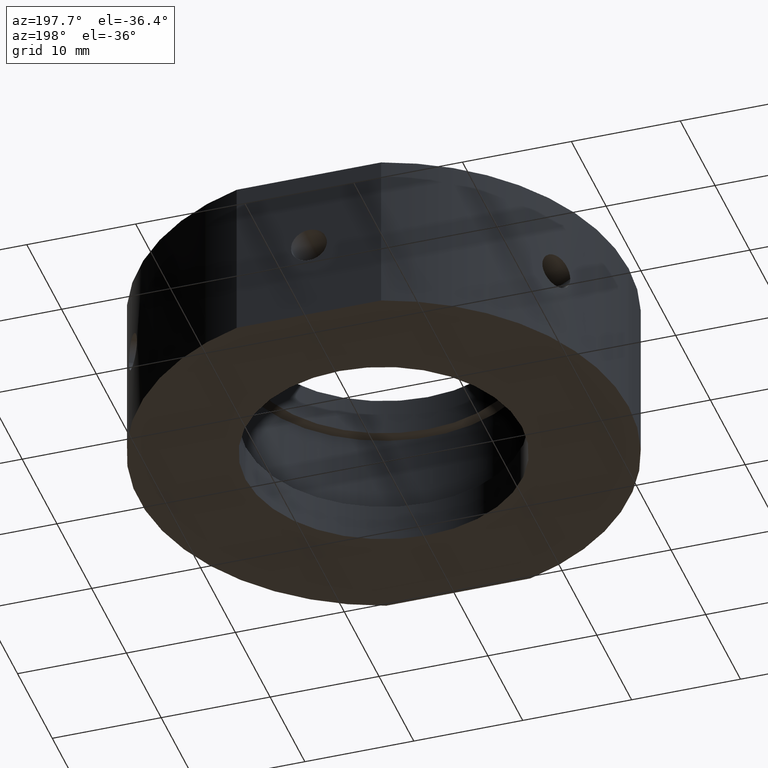
[diagram: clean part render]
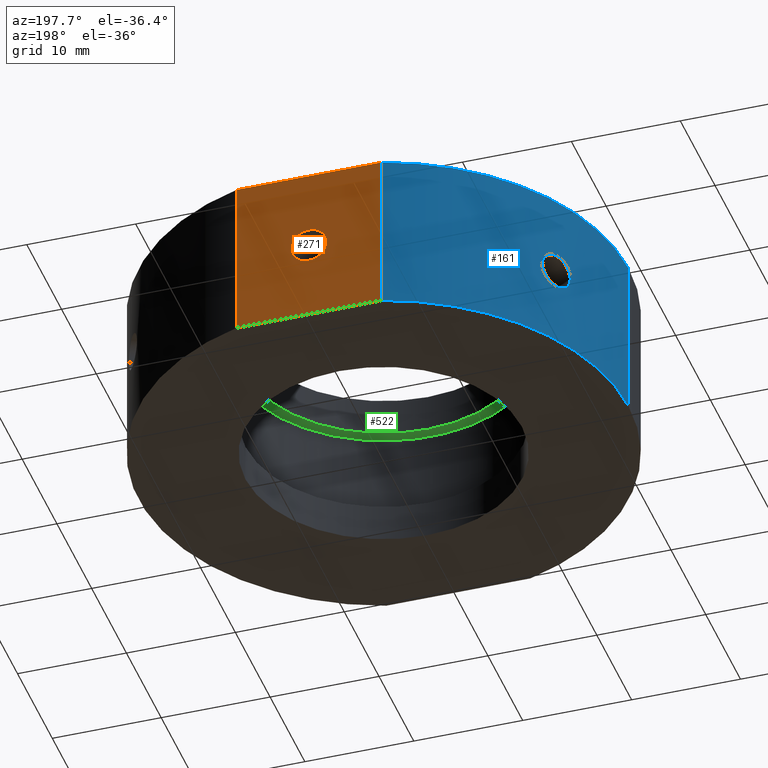
[diagram: same view with three faces highlighted in distinct colors, each labeled with its STEP entity id]
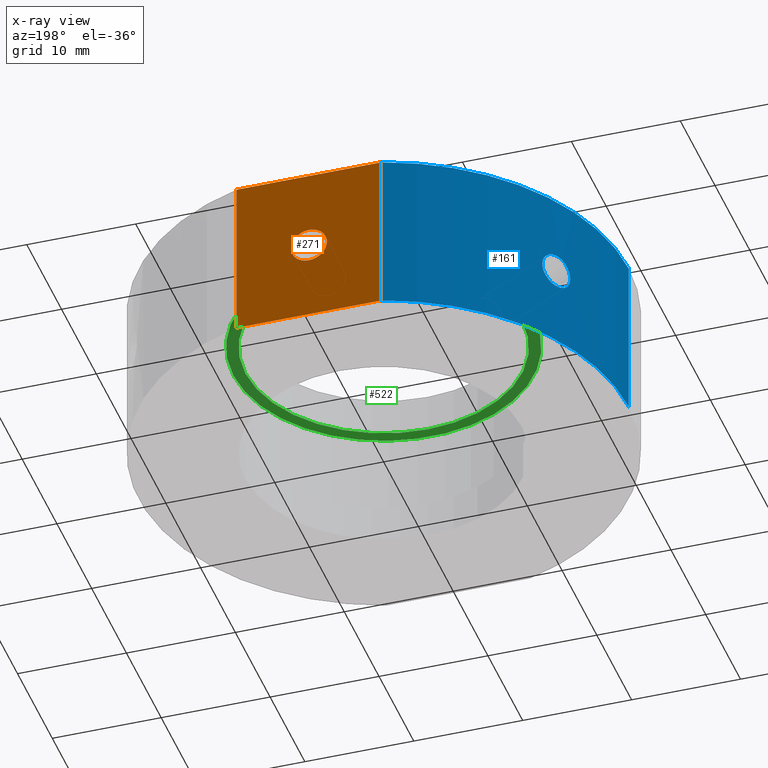
[diagram: x-ray of the same camera — body ghosted, the three highlighted faces saturated]
A machine part, auxiliary view with three faces highlighted in distinct colors.
The next image is the same camera in x-ray (body ghosted, the three faces saturated) — at least one of them is partly hidden behind the body in this view.
Their STEP definitions:

[orange] entity #271 — the highlighted planar face has unit normal (0, -1, 0).
#10 = CARTESIAN_POINT ( 'NONE',  ( 6.071532165918824800E-015, 21.50000000000000000, 0.0000000000000000000 ) ) ;
#14 = EDGE_CURVE ( 'NONE', #108, #37, #1005, .T. ) ;
#37 = VERTEX_POINT ( 'NONE', #937 ) ;
#43 = VERTEX_POINT ( 'NONE', #748 ) ;
#71 = AXIS2_PLACEMENT_3D ( 'NONE', #941, #752, #401 ) ;
#85 = EDGE_CURVE ( 'NONE', #43, #275, #1040, .T. ) ;
#108 = VERTEX_POINT ( 'NONE', #494 ) ;
#122 = PLANE ( 'NONE',  #908 ) ;
#126 = CARTESIAN_POINT ( 'NONE',  ( 6.273598887778137200E-015, 21.50000000000000000, -1.649999999999989900 ) ) ;
#140 = VECTOR ( 'NONE', #651, 1000.000000000000000 ) ;
#149 = DIRECTION ( 'NONE',  ( 0.0000000000000000000, -0.0000000000000000000, -1.000000000000000000 ) ) ;
#165 = CARTESIAN_POINT ( 'NONE',  ( 6.633249580710828900, 21.49999999999999300, -7.500000000000000000 ) ) ;
#173 = EDGE_LOOP ( 'NONE', ( #633, #805, #459, #1045 ) ) ;
#182 = EDGE_CURVE ( 'NONE', #37, #563, #1062, .T. ) ;
#195 = VECTOR ( 'NONE', #868, 1000.000000000000000 ) ;
#221 = CARTESIAN_POINT ( 'NONE',  ( -6.633249580710826300, 21.49999999999999300, -31.93906810035839800 ) ) ;
#260 = DIRECTION ( 'NONE',  ( 0.0000000000000000000, 0.0000000000000000000, 1.000000000000000000 ) ) ;
#271 = ADVANCED_FACE ( 'NONE', ( #784, #332 ), #122, .F. ) ;
#275 = VERTEX_POINT ( 'NONE', #126 ) ;
#307 = ORIENTED_EDGE ( 'NONE', *, *, #764, .F. ) ;
#313 = EDGE_LOOP ( 'NONE', ( #461, #307 ) ) ;
#332 = FACE_OUTER_BOUND ( 'NONE', #173, .T. ) ;
#344 = DIRECTION ( 'NONE',  ( -0.0000000000000000000, 1.000000000000000000, -0.0000000000000000000 ) ) ;
#350 = CARTESIAN_POINT ( 'NONE',  ( 12.70000000000000300, 21.50000000000000000, -7.500000000000002700 ) ) ;
#400 = CARTESIAN_POINT ( 'NONE',  ( -6.633249580710799600, 21.50000000000000000, -7.500000000000002700 ) ) ;
#401 = DIRECTION ( 'NONE',  ( 0.0000000000000000000, 0.0000000000000000000, 1.000000000000000000 ) ) ;
#440 = VERTEX_POINT ( 'NONE', #165 ) ;
#459 = ORIENTED_EDGE ( 'NONE', *, *, #503, .F. ) ;
#461 = ORIENTED_EDGE ( 'NONE', *, *, #85, .F. ) ;
#494 = CARTESIAN_POINT ( 'NONE',  ( 6.633249580710813800, 21.50000000000000000, 7.499999999999999100 ) ) ;
#503 = EDGE_CURVE ( 'NONE', #563, #440, #910, .T. ) ;
#515 = VECTOR ( 'NONE', #814, 1000.000000000000000 ) ;
#563 = VERTEX_POINT ( 'NONE', #400 ) ;
#606 = CARTESIAN_POINT ( 'NONE',  ( 6.633249580710826300, 21.49999999999999300, -31.93906810035839800 ) ) ;
#633 = ORIENTED_EDGE ( 'NONE', *, *, #14, .F. ) ;
#638 = LINE ( 'NONE', #606, #195 ) ;
#639 = EDGE_CURVE ( 'NONE', #440, #108, #638, .T. ) ;
#651 = DIRECTION ( 'NONE',  ( -1.224646799147350500E-016, -0.0000000000000000000, -1.000000000000000000 ) ) ;
#719 = CARTESIAN_POINT ( 'NONE',  ( 22.50000000000000700, 21.50000000000000000, 7.499999999999996400 ) ) ;
#748 = CARTESIAN_POINT ( 'NONE',  ( 6.071532165918824800E-015, 21.50000000000000000, 1.649999999999989900 ) ) ;
#752 = DIRECTION ( 'NONE',  ( -0.0000000000000000000, 1.000000000000000000, -0.0000000000000000000 ) ) ;
#764 = EDGE_CURVE ( 'NONE', #275, #43, #838, .T. ) ;
#771 = CARTESIAN_POINT ( 'NONE',  ( -33.15197265346817100, 21.50000000000000000, -41.50000000000002100 ) ) ;
#784 = FACE_BOUND ( 'NONE', #313, .T. ) ;
#805 = ORIENTED_EDGE ( 'NONE', *, *, #639, .F. ) ;
#814 = DIRECTION ( 'NONE',  ( -1.000000000000000000, 0.0000000000000000000, 1.224646799147350500E-016 ) ) ;
#838 = CIRCLE ( 'NONE', #863, 1.649999999999989900 ) ;
#863 = AXIS2_PLACEMENT_3D ( 'NONE', #10, #344, #260 ) ;
#868 = DIRECTION ( 'NONE',  ( 1.224646799147350500E-016, 0.0000000000000000000, 1.000000000000000000 ) ) ;
#908 = AXIS2_PLACEMENT_3D ( 'NONE', #771, #1034, #149 ) ;
#910 = LINE ( 'NONE', #350, #1101 ) ;
#937 = CARTESIAN_POINT ( 'NONE',  ( -6.633249580710805800, 21.50000000000000000, 7.499999999999993800 ) ) ;
#941 = CARTESIAN_POINT ( 'NONE',  ( 6.071532165918824800E-015, 21.50000000000000000, 0.0000000000000000000 ) ) ;
#1005 = LINE ( 'NONE', #719, #515 ) ;
#1034 = DIRECTION ( 'NONE',  ( 0.0000000000000000000, -1.000000000000000000, 0.0000000000000000000 ) ) ;
#1040 = CIRCLE ( 'NONE', #71, 1.649999999999989900 ) ;
#1045 = ORIENTED_EDGE ( 'NONE', *, *, #182, .F. ) ;
#1062 = LINE ( 'NONE', #221, #140 ) ;
#1074 = DIRECTION ( 'NONE',  ( 1.000000000000000000, 0.0000000000000000000, -1.224646799147350500E-016 ) ) ;
#1101 = VECTOR ( 'NONE', #1074, 1000.000000000000000 ) ;

[blue] entity #161 — the highlighted cylindrical surface (partial cylindrical patch) has radius 22.5 mm, axis along (-0, -0, -1).
#5 = CARTESIAN_POINT ( 'NONE',  ( -20.22117803179613900, 9.866898344264484400, -0.5320533464823926600 ) ) ;
#15 = CARTESIAN_POINT ( 'NONE',  ( -19.26822083744344000, 11.61881524249319000, -1.597151308643779200 ) ) ;
#16 = CARTESIAN_POINT ( 'NONE',  ( -19.05883007539623000, 11.95905715500232900, 1.431603215071189000 ) ) ;
#21 = VERTEX_POINT ( 'NONE', #299 ) ;
#23 = CIRCLE ( 'NONE', #702, 22.50000000000000000 ) ;
#29 = CARTESIAN_POINT ( 'NONE',  ( -19.10906443453928100, 11.87870452879390400, 1.482324220416189900 ) ) ;
#37 = VERTEX_POINT ( 'NONE', #937 ) ;
#39 = VECTOR ( 'NONE', #298, 1000.000000000000000 ) ;
#42 = CARTESIAN_POINT ( 'NONE',  ( 4.829892851045827200E-015, 0.0000000000000000000, 7.499999999999992900 ) ) ;
#66 = DIRECTION ( 'NONE',  ( -1.000000000000000000, 0.0000000000000000000, 0.0000000000000000000 ) ) ;
#79 = CARTESIAN_POINT ( 'NONE',  ( -20.10861962241923000, 10.09440518437754100, -1.005981911973163400 ) ) ;
#88 = FACE_OUTER_BOUND ( 'NONE', #525, .T. ) ;
#94 = CARTESIAN_POINT ( 'NONE',  ( -20.25344142869103300, 9.800436335307317400, -0.2162874750742588300 ) ) ;
#113 = B_SPLINE_CURVE_WITH_KNOTS ( 'NONE', 3,
 ( #196, #741, #823, #470, #285, #1079, #902, #16, #29, #644, #919, #723, #365, #376, #114, #645, #200, #827, #290, #554, #295, #1008, #1084, #925 ),
 .UNSPECIFIED., .F., .F.,
 ( 4, 2, 2, 2, 2, 2, 2, 2, 2, 2, 2, 4 ),
 ( 0.005160383223614561100, 0.005805282465315268200, 0.006450181707015975400, 0.006772631327866325500, 0.007095080948716674800, 0.007417530569567024900, 0.007739980190417375000, 0.008384879432118070100, 0.008707329052968412400, 0.009029778673818756500, 0.009674677915519444600, 0.01031957715722013400 ),
 .UNSPECIFIED. ) ;
#114 = CARTESIAN_POINT ( 'NONE',  ( -19.69811034423322800, 10.87540731472498700, 1.607441041680906400 ) ) ;
#116 = CYLINDRICAL_SURFACE ( 'NONE', #958, 22.50000000000000000 ) ;
#131 = CARTESIAN_POINT ( 'NONE',  ( -18.63793209717591300, 12.60467907797121600, -0.4286018244349813500 ) ) ;
#140 = VECTOR ( 'NONE', #651, 1000.000000000000000 ) ;
#161 = ADVANCED_FACE ( 'NONE', ( #88, #278 ), #116, .T. ) ;
#172 = CARTESIAN_POINT ( 'NONE',  ( -20.25810641662824800, 9.790767304586768900, -0.1090587332655386800 ) ) ;
#182 = EDGE_CURVE ( 'NONE', #37, #563, #1062, .T. ) ;
#196 = CARTESIAN_POINT ( 'NONE',  ( -18.60810641662824600, 12.64865113707539200, 2.020667263024862200E-016 ) ) ;
#200 = CARTESIAN_POINT ( 'NONE',  ( -19.88534993490053900, 10.52762599605220500, 1.432719790953437000 ) ) ;
#202 = DIRECTION ( 'NONE',  ( -1.000000000000000000, 0.0000000000000000000, 1.156482317317871200E-016 ) ) ;
#211 = CARTESIAN_POINT ( 'NONE',  ( -19.21486011188203600, 11.70679890416977500, -1.565974926310358000 ) ) ;
#221 = CARTESIAN_POINT ( 'NONE',  ( -6.633249580710826300, 21.49999999999999300, -31.93906810035839800 ) ) ;
#250 = VERTEX_POINT ( 'NONE', #842 ) ;
#261 = CARTESIAN_POINT ( 'NONE',  ( -19.88818014593819700, 10.52377058317680000, -1.442013257166697500 ) ) ;
#278 = FACE_BOUND ( 'NONE', #293, .T. ) ;
#285 = CARTESIAN_POINT ( 'NONE',  ( -18.79271128675919300, 12.37364815511228300, 1.013701896851197500 ) ) ;
#290 = CARTESIAN_POINT ( 'NONE',  ( -20.00768950323507400, 10.29311306632212500, 1.243597569724805400 ) ) ;
#293 = EDGE_LOOP ( 'NONE', ( #947, #780 ) ) ;
#295 = CARTESIAN_POINT ( 'NONE',  ( -20.16630116360724000, 9.978834015259586500, 0.8315909376945351800 ) ) ;
#297 = CARTESIAN_POINT ( 'NONE',  ( -18.83413387902964700, 12.30980716680219300, -1.089943829978072800 ) ) ;
#298 = DIRECTION ( 'NONE',  ( -1.224646799147350500E-016, -0.0000000000000000000, -1.000000000000000000 ) ) ;
#299 = CARTESIAN_POINT ( 'NONE',  ( -22.50000000000000000, 0.0000000000000000000, 7.499999999999995600 ) ) ;
#306 = CARTESIAN_POINT ( 'NONE',  ( -22.50000000000000000, 0.0000000000000000000, -31.93906810035839800 ) ) ;
#357 = CARTESIAN_POINT ( 'NONE',  ( -19.59352181747923200, 11.06301336427406300, -1.649922622886365500 ) ) ;
#365 = CARTESIAN_POINT ( 'NONE',  ( -19.43045358545735400, 11.34545427137673100, 1.649912014729165900 ) ) ;
#376 = CARTESIAN_POINT ( 'NONE',  ( -19.59381990642730300, 11.06253398261654100, 1.650174374395401200 ) ) ;
#380 = AXIS2_PLACEMENT_3D ( 'NONE', #42, #738, #202 ) ;
#400 = CARTESIAN_POINT ( 'NONE',  ( -6.633249580710799600, 21.50000000000000000, -7.500000000000002700 ) ) ;
#451 = CARTESIAN_POINT ( 'NONE',  ( -19.43204055837166800, 11.34272410910774400, -1.650038529183564000 ) ) ;
#470 = CARTESIAN_POINT ( 'NONE',  ( -18.72443553671950100, 12.47606910408178400, 0.8296025954351865500 ) ) ;
#496 = CARTESIAN_POINT ( 'NONE',  ( -18.60810641662824900, 12.64865113707539400, -0.1077054714931356700 ) ) ;
#510 = EDGE_CURVE ( 'NONE', #250, #1019, #732, .T. ) ;
#513 = CARTESIAN_POINT ( 'NONE',  ( -18.96317305376358300, 12.11016392753319900, -1.312163548273845800 ) ) ;
#525 = EDGE_LOOP ( 'NONE', ( #922, #692, #985, #769 ) ) ;
#531 = CARTESIAN_POINT ( 'NONE',  ( -19.37667444682860200, 11.43703148816601000, -1.639300148209339900 ) ) ;
#554 = CARTESIAN_POINT ( 'NONE',  ( -20.11166152774220000, 10.08931781684726500, 1.015440336546107300 ) ) ;
#563 = VERTEX_POINT ( 'NONE', #400 ) ;
#577 = EDGE_CURVE ( 'NONE', #1085, #563, #23, .T. ) ;
#582 = CARTESIAN_POINT ( 'NONE',  ( -18.60810641662824600, 12.64865113707539200, 2.020667263024862200E-016 ) ) ;
#592 = DIRECTION ( 'NONE',  ( -1.224646799147350500E-016, -0.0000000000000000000, -1.000000000000000000 ) ) ;
#644 = CARTESIAN_POINT ( 'NONE',  ( -19.21371282972923600, 11.70868071741904100, 1.565221042383190500 ) ) ;
#645 = CARTESIAN_POINT ( 'NONE',  ( -19.84083197290809500, 10.61138046964286700, 1.483341811114536200 ) ) ;
#651 = DIRECTION ( 'NONE',  ( -1.224646799147350500E-016, -0.0000000000000000000, -1.000000000000000000 ) ) ;
#664 = CARTESIAN_POINT ( 'NONE',  ( -18.65546112740139200, 12.57877149691223700, -0.5314702050519215500 ) ) ;
#678 = CARTESIAN_POINT ( 'NONE',  ( -18.70173569627144900, 12.50986827246084800, -0.7313887006983229600 ) ) ;
#692 = ORIENTED_EDGE ( 'NONE', *, *, #1039, .T. ) ;
#702 = AXIS2_PLACEMENT_3D ( 'NONE', #948, #1024, #1029 ) ;
#714 = CARTESIAN_POINT ( 'NONE',  ( -20.16216375849958500, 9.987029173932423700, -0.8266368506187202800 ) ) ;
#723 = CARTESIAN_POINT ( 'NONE',  ( -19.37619183932969200, 11.43784563228304300, 1.639150382823925100 ) ) ;
#732 = B_SPLINE_CURVE_WITH_KNOTS ( 'NONE', 3,
 ( #1060, #172, #94, #887, #5, #800, #714, #79, #1048, #1132, #261, #882, #357, #451, #531, #15, #211, #921, #1065, #513, #1049, #297, #959, #967, #678, #664, #131, #844, #496, #582 ),
 .UNSPECIFIED., .F., .F.,
 ( 4, 2, 2, 2, 2, 2, 2, 2, 2, 2, 2, 2, 2, 2, 4 ),
 ( 0.0000000000000000000, 0.0003225239514759115800, 0.0006450479029518231700, 0.0009675718544277343700, 0.001290095805903645700, 0.001935143708855465300, 0.002580191611807285300, 0.002902715563283194500, 0.003225239514759103400, 0.003547763466235013100, 0.003870287417710921900, 0.004192811369186831600, 0.004515335320662741700, 0.004837859272138650900, 0.005160383223614561100 ),
 .UNSPECIFIED. ) ;
#738 = DIRECTION ( 'NONE',  ( -1.224646799147350500E-016, -0.0000000000000000000, -1.000000000000000000 ) ) ;
#741 = CARTESIAN_POINT ( 'NONE',  ( -18.60810641662824600, 12.64865113707539600, 0.2153612982077316700 ) ) ;
#769 = ORIENTED_EDGE ( 'NONE', *, *, #577, .F. ) ;
#780 = ORIENTED_EDGE ( 'NONE', *, *, #880, .T. ) ;
#800 = CARTESIAN_POINT ( 'NONE',  ( -20.18462480212213400, 9.941460935254919900, -0.7318718721764815300 ) ) ;
#823 = CARTESIAN_POINT ( 'NONE',  ( -18.63257669664227500, 12.61284551964113700, 0.4324585402576647800 ) ) ;
#827 = CARTESIAN_POINT ( 'NONE',  ( -19.96868275772032000, 10.36869133824158400, 1.313203471232424800 ) ) ;
#842 = CARTESIAN_POINT ( 'NONE',  ( -20.25810641662824800, 9.790767304586770700, 0.0000000000000000000 ) ) ;
#844 = CARTESIAN_POINT ( 'NONE',  ( -18.61419720343361200, 12.63970371445745900, -0.2171000533953875400 ) ) ;
#880 = EDGE_CURVE ( 'NONE', #1019, #250, #113, .T. ) ;
#882 = CARTESIAN_POINT ( 'NONE',  ( -19.69928013699294700, 10.87326164905923600, -1.606581491676220900 ) ) ;
#887 = CARTESIAN_POINT ( 'NONE',  ( -20.23508979026608800, 9.838271354648599100, -0.4272369033474193200 ) ) ;
#902 = CARTESIAN_POINT ( 'NONE',  ( -18.96283749481673600, 12.11069139333559400, 1.311713029802911200 ) ) ;
#919 = CARTESIAN_POINT ( 'NONE',  ( -19.26811661407768700, 11.61898468235269300, 1.597072805409012600 ) ) ;
#921 = CARTESIAN_POINT ( 'NONE',  ( -19.11009701581169300, 11.87704431869018300, -1.483293915646771500 ) ) ;
#922 = ORIENTED_EDGE ( 'NONE', *, *, #1015, .F. ) ;
#925 = CARTESIAN_POINT ( 'NONE',  ( -20.25810641662824800, 9.790767304586770700, 0.0000000000000000000 ) ) ;
#935 = CARTESIAN_POINT ( 'NONE',  ( -18.60810641662824600, 12.64865113707539200, 2.020667263024862200E-016 ) ) ;
#937 = CARTESIAN_POINT ( 'NONE',  ( -6.633249580710805800, 21.50000000000000000, 7.499999999999993800 ) ) ;
#940 = LINE ( 'NONE', #306, #39 ) ;
#947 = ORIENTED_EDGE ( 'NONE', *, *, #510, .T. ) ;
#948 = CARTESIAN_POINT ( 'NONE',  ( 2.992922652324802300E-015, 0.0000000000000000000, -7.500000000000003600 ) ) ;
#958 = AXIS2_PLACEMENT_3D ( 'NONE', #1114, #592, #66 ) ;
#959 = CARTESIAN_POINT ( 'NONE',  ( -18.79657013430146500, 12.36699372930535100, -1.006534927037092700 ) ) ;
#963 = CIRCLE ( 'NONE', #380, 22.50000000000000400 ) ;
#967 = CARTESIAN_POINT ( 'NONE',  ( -18.73050579597769500, 12.46682539146345400, -0.8278483551175386300 ) ) ;
#985 = ORIENTED_EDGE ( 'NONE', *, *, #182, .T. ) ;
#1008 = CARTESIAN_POINT ( 'NONE',  ( -20.23906661269736400, 9.830412685752680300, 0.4347098583132135200 ) ) ;
#1015 = EDGE_CURVE ( 'NONE', #21, #1085, #940, .T. ) ;
#1019 = VERTEX_POINT ( 'NONE', #935 ) ;
#1024 = DIRECTION ( 'NONE',  ( -1.224646799147350500E-016, -0.0000000000000000000, -1.000000000000000000 ) ) ;
#1029 = DIRECTION ( 'NONE',  ( -1.000000000000000000, 0.0000000000000000000, 1.156482317317871500E-016 ) ) ;
#1039 = EDGE_CURVE ( 'NONE', #21, #37, #963, .T. ) ;
#1048 = CARTESIAN_POINT ( 'NONE',  ( -20.07725214420228400, 10.15675903091387000, -1.090865916825005900 ) ) ;
#1049 = CARTESIAN_POINT ( 'NONE',  ( -18.91810326811242100, 12.18036617651954300, -1.243967150874419900 ) ) ;
#1060 = CARTESIAN_POINT ( 'NONE',  ( -20.25810641662824800, 9.790767304586770700, 0.0000000000000000000 ) ) ;
#1062 = LINE ( 'NONE', #221, #140 ) ;
#1065 = CARTESIAN_POINT ( 'NONE',  ( -19.05886919334700400, 11.95899275397387600, -1.431620527020546900 ) ) ;
#1079 = CARTESIAN_POINT ( 'NONE',  ( -18.91697055752793200, 12.18211871839710600, 1.242018767666874800 ) ) ;
#1080 = CARTESIAN_POINT ( 'NONE',  ( -22.49999999999999600, 0.0000000000000000000, -7.500000000000000900 ) ) ;
#1084 = CARTESIAN_POINT ( 'NONE',  ( -20.25810641662824100, 9.790767304586767100, 0.2180671979923876900 ) ) ;
#1085 = VERTEX_POINT ( 'NONE', #1080 ) ;
#1114 = CARTESIAN_POINT ( 'NONE',  ( 0.0000000000000000000, 0.0000000000000000000, -31.93906810035839800 ) ) ;
#1132 = CARTESIAN_POINT ( 'NONE',  ( -19.97335872455489500, 10.36041369617781900, -1.319097808869327000 ) ) ;

[green] entity #522 — the highlighted planar face has unit normal (0, 0, 1).
#32 = ORIENTED_EDGE ( 'NONE', *, *, #786, .F. ) ;
#33 = AXIS2_PLACEMENT_3D ( 'NONE', #613, #713, #810 ) ;
#99 = CIRCLE ( 'NONE', #1016, 13.79999999999999900 ) ;
#125 = CARTESIAN_POINT ( 'NONE',  ( -12.69999999999998900, 0.0000000000000000000, 3.999999999999998200 ) ) ;
#143 = DIRECTION ( 'NONE',  ( 1.224646799147350500E-016, 0.0000000000000000000, 1.000000000000000000 ) ) ;
#205 = CARTESIAN_POINT ( 'NONE',  ( 13.80000000000000600, 1.690012582823347700E-015, 3.999999999999994700 ) ) ;
#208 = EDGE_LOOP ( 'NONE', ( #737, #969 ) ) ;
#243 = PLANE ( 'NONE',  #614 ) ;
#264 = DIRECTION ( 'NONE',  ( -1.224646799147350500E-016, -0.0000000000000000000, -1.000000000000000000 ) ) ;
#265 = AXIS2_PLACEMENT_3D ( 'NONE', #716, #264, #356 ) ;
#303 = EDGE_CURVE ( 'NONE', #339, #329, #99, .T. ) ;
#304 = EDGE_LOOP ( 'NONE', ( #32, #679 ) ) ;
#320 = CARTESIAN_POINT ( 'NONE',  ( 4.401266471344255700E-015, 0.0000000000000000000, 3.999999999999996400 ) ) ;
#329 = VERTEX_POINT ( 'NONE', #648 ) ;
#339 = VERTEX_POINT ( 'NONE', #205 ) ;
#356 = DIRECTION ( 'NONE',  ( -1.000000000000000000, 0.0000000000000000000, 1.257045997084642900E-016 ) ) ;
#447 = CIRCLE ( 'NONE', #33, 12.69999999999999400 ) ;
#477 = CIRCLE ( 'NONE', #265, 13.79999999999999900 ) ;
#486 = DIRECTION ( 'NONE',  ( -1.224646799147350500E-016, -0.0000000000000000000, -1.000000000000000000 ) ) ;
#500 = DIRECTION ( 'NONE',  ( -1.000000000000000000, 0.0000000000000000000, 1.257045997084642900E-016 ) ) ;
#522 = ADVANCED_FACE ( 'NONE', ( #1089, #568 ), #243, .F. ) ;
#524 = DIRECTION ( 'NONE',  ( -1.000000000000000000, 0.0000000000000000000, 1.365923996832132100E-016 ) ) ;
#568 = FACE_OUTER_BOUND ( 'NONE', #208, .T. ) ;
#613 = CARTESIAN_POINT ( 'NONE',  ( 4.401266471344255700E-015, 0.0000000000000000000, 3.999999999999996400 ) ) ;
#614 = AXIS2_PLACEMENT_3D ( 'NONE', #1032, #143, #774 ) ;
#637 = CARTESIAN_POINT ( 'NONE',  ( 4.401266471344255700E-015, 0.0000000000000000000, 3.999999999999996400 ) ) ;
#648 = CARTESIAN_POINT ( 'NONE',  ( -13.79999999999999500, 0.0000000000000000000, 3.999999999999998200 ) ) ;
#650 = CARTESIAN_POINT ( 'NONE',  ( 12.69999999999999900, 1.555301434917138000E-015, 3.999999999999994700 ) ) ;
#679 = ORIENTED_EDGE ( 'NONE', *, *, #1107, .F. ) ;
#713 = DIRECTION ( 'NONE',  ( -1.224646799147350500E-016, -0.0000000000000000000, -1.000000000000000000 ) ) ;
#716 = CARTESIAN_POINT ( 'NONE',  ( 4.401266471344255700E-015, 0.0000000000000000000, 3.999999999999996400 ) ) ;
#737 = ORIENTED_EDGE ( 'NONE', *, *, #775, .T. ) ;
#774 = DIRECTION ( 'NONE',  ( 1.000000000000000000, 0.0000000000000000000, -1.224646799147350500E-016 ) ) ;
#775 = EDGE_CURVE ( 'NONE', #329, #339, #477, .T. ) ;
#786 = EDGE_CURVE ( 'NONE', #1099, #983, #447, .T. ) ;
#788 = AXIS2_PLACEMENT_3D ( 'NONE', #637, #486, #524 ) ;
#810 = DIRECTION ( 'NONE',  ( -1.000000000000000000, 0.0000000000000000000, 1.365923996832132100E-016 ) ) ;
#854 = DIRECTION ( 'NONE',  ( -1.224646799147350500E-016, -0.0000000000000000000, -1.000000000000000000 ) ) ;
#895 = CIRCLE ( 'NONE', #788, 12.69999999999999400 ) ;
#969 = ORIENTED_EDGE ( 'NONE', *, *, #303, .T. ) ;
#983 = VERTEX_POINT ( 'NONE', #650 ) ;
#1016 = AXIS2_PLACEMENT_3D ( 'NONE', #320, #854, #500 ) ;
#1032 = CARTESIAN_POINT ( 'NONE',  ( 12.69999999999999900, 0.0000000000000000000, 3.999999999999998200 ) ) ;
#1089 = FACE_BOUND ( 'NONE', #304, .T. ) ;
#1099 = VERTEX_POINT ( 'NONE', #125 ) ;
#1107 = EDGE_CURVE ( 'NONE', #983, #1099, #895, .T. ) ;